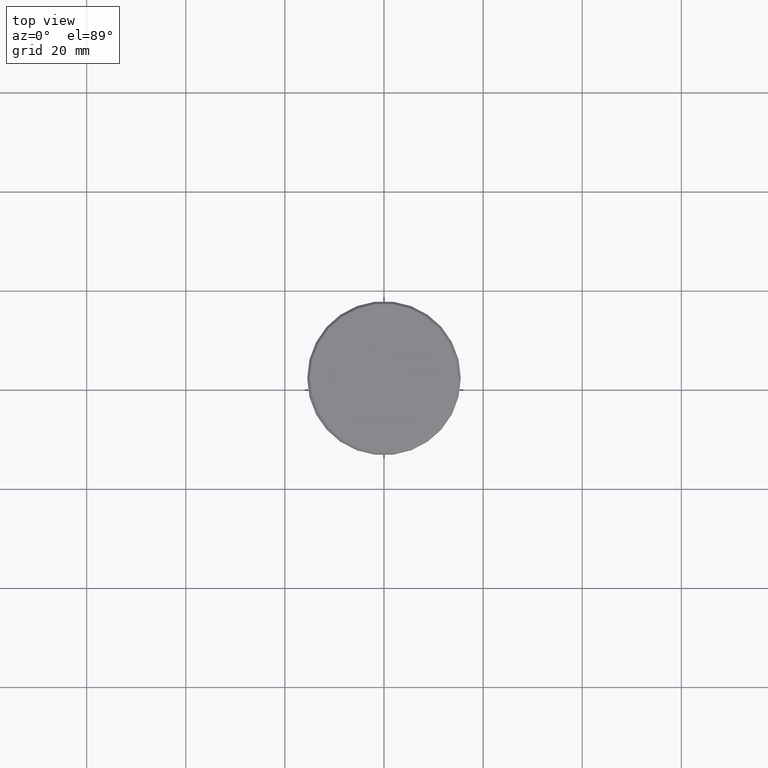
[diagram: clean part render]
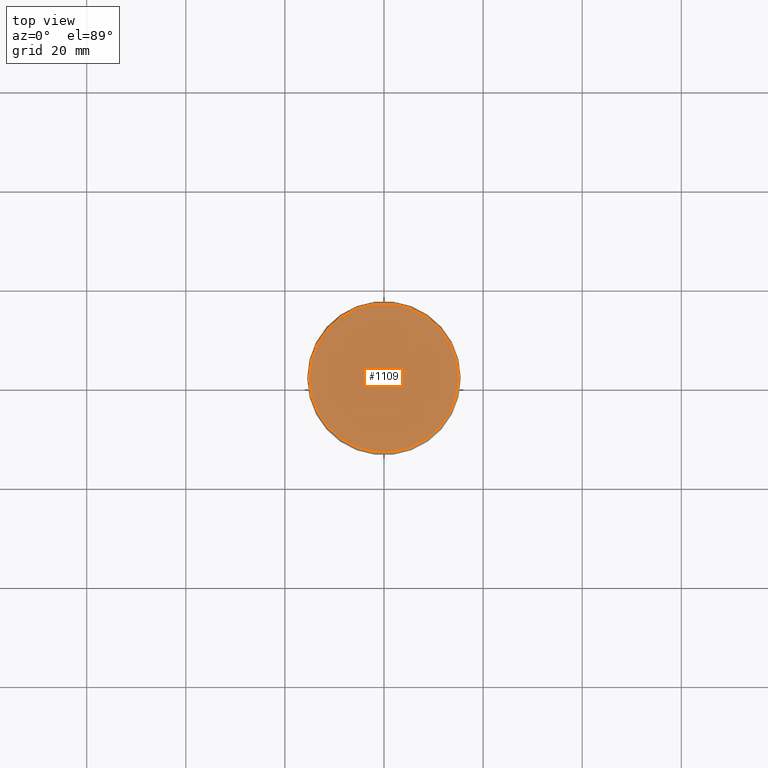
[diagram: same view with one face highlighted and labeled with its STEP entity id]
A machine part, top view. The second image highlights one B-rep face of the part: STEP entity #1109.
In plain terms, the highlighted planar face has unit normal (0, -0, 1).
Its self-contained STEP definition (entity closure, byte-faithful):
#16 = CARTESIAN_POINT ( 'NONE',  ( 0.000000000000000000, 0.000000000000000000, 0.000000000000000000 ) ) ;
#160 = VERTEX_POINT ( 'NONE', #1137 ) ;
#214 = VERTEX_POINT ( 'NONE', #1120 ) ;
#268 = CARTESIAN_POINT ( 'NONE',  ( 0.000000000000000000, 0.000000000000000000, 0.000000000000000000 ) ) ;
#285 = PLANE ( 'NONE',  #984 ) ;
#359 = DIRECTION ( 'NONE',  ( 1.000000000000000000, 0.000000000000000000, 0.000000000000000000 ) ) ;
#473 = DIRECTION ( 'NONE',  ( 1.000000000000000000, 0.000000000000000000, 0.000000000000000000 ) ) ;
#556 = DIRECTION ( 'NONE',  ( -0.000000000000000000, -0.000000000000000000, 1.000000000000000000 ) ) ;
#570 = CARTESIAN_POINT ( 'NONE',  ( 0.000000000000000000, 0.000000000000000000, 0.000000000000000000 ) ) ;
#593 = CIRCLE ( 'NONE', #1096, 14.99999999999998579 ) ;
#640 = AXIS2_PLACEMENT_3D ( 'NONE', #16, #556, #359 ) ;
#682 = CIRCLE ( 'NONE', #640, 14.99999999999998579 ) ;
#731 = ORIENTED_EDGE ( 'NONE', *, *, #1166, .T. ) ;
#733 = FACE_OUTER_BOUND ( 'NONE', #1130, .T. ) ;
#915 = DIRECTION ( 'NONE',  ( 0.000000000000000000, -0.000000000000000000, 1.000000000000000000 ) ) ;
#984 = AXIS2_PLACEMENT_3D ( 'NONE', #268, #915, #997 ) ;
#997 = DIRECTION ( 'NONE',  ( 1.000000000000000000, 0.000000000000000000, 0.000000000000000000 ) ) ;
#1045 = DIRECTION ( 'NONE',  ( -0.000000000000000000, -0.000000000000000000, 1.000000000000000000 ) ) ;
#1080 = EDGE_CURVE ( 'NONE', #214, #160, #682, .T. ) ;
#1096 = AXIS2_PLACEMENT_3D ( 'NONE', #570, #1045, #473 ) ;
#1109 = ADVANCED_FACE ( 'NONE', ( #733 ), #285, .T. ) ;
#1120 = CARTESIAN_POINT ( 'NONE',  ( -14.99999999999998579, 0.000000000000000000, 0.000000000000000000 ) ) ;
#1121 = ORIENTED_EDGE ( 'NONE', *, *, #1080, .T. ) ;
#1130 = EDGE_LOOP ( 'NONE', ( #1121, #731 ) ) ;
#1137 = CARTESIAN_POINT ( 'NONE',  ( 14.99999999999998579, 1.867586368699712587E-15, 0.000000000000000000 ) ) ;
#1166 = EDGE_CURVE ( 'NONE', #160, #214, #593, .T. ) ;